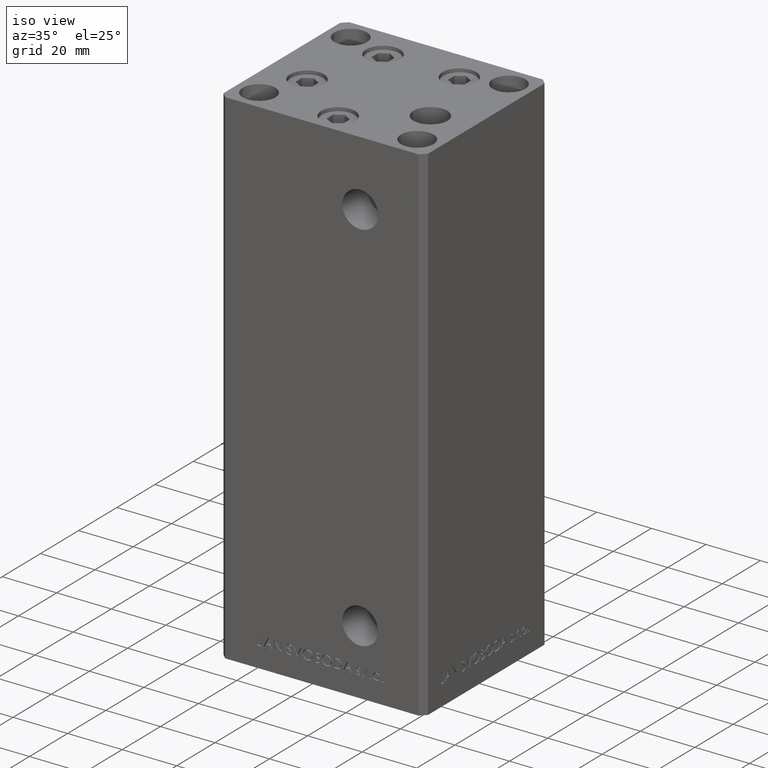
[diagram: clean part render]
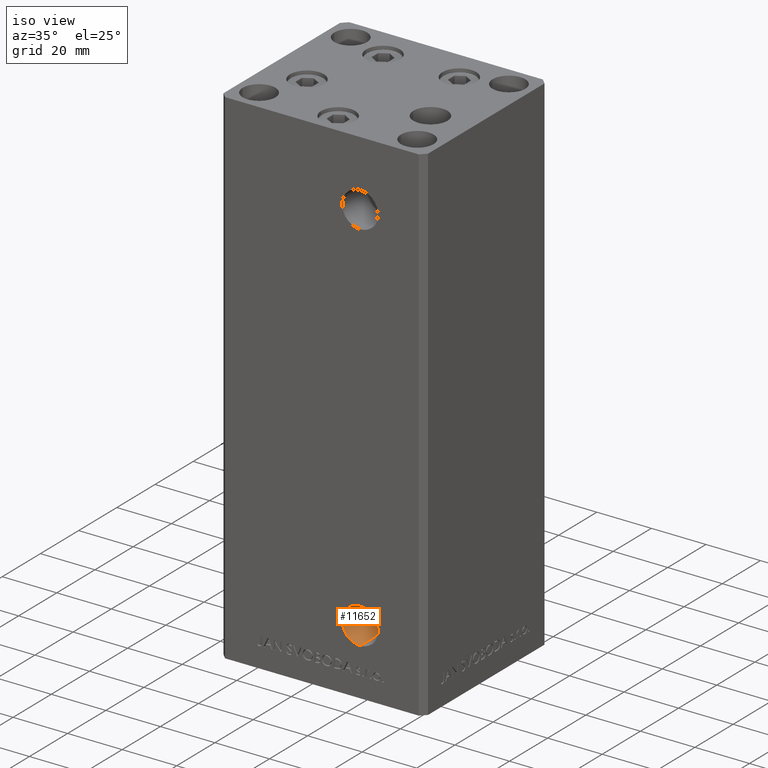
[diagram: same view with one face highlighted and labeled with its STEP entity id]
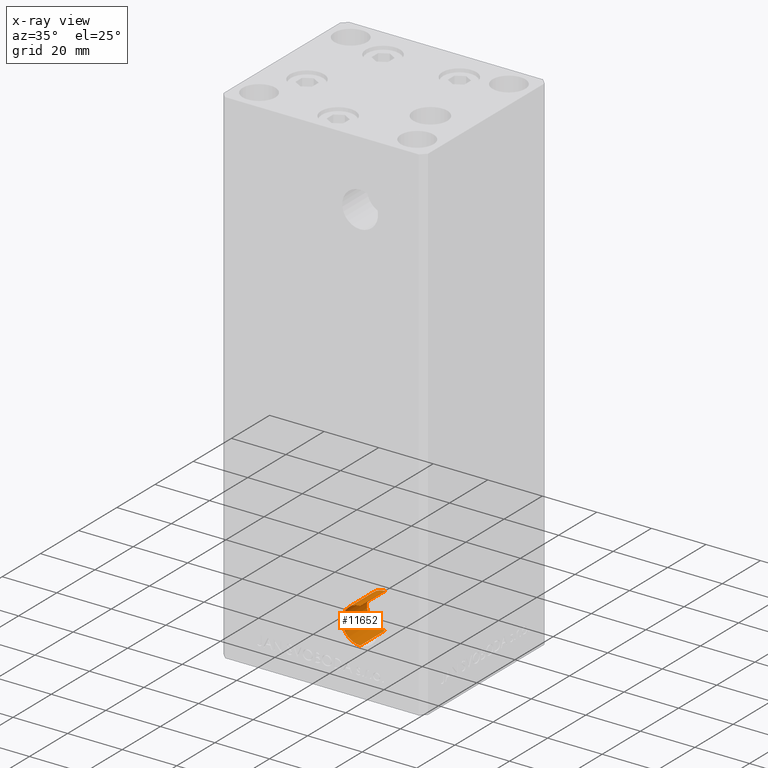
[diagram: x-ray of the same camera — body ghosted, the highlighted face saturated]
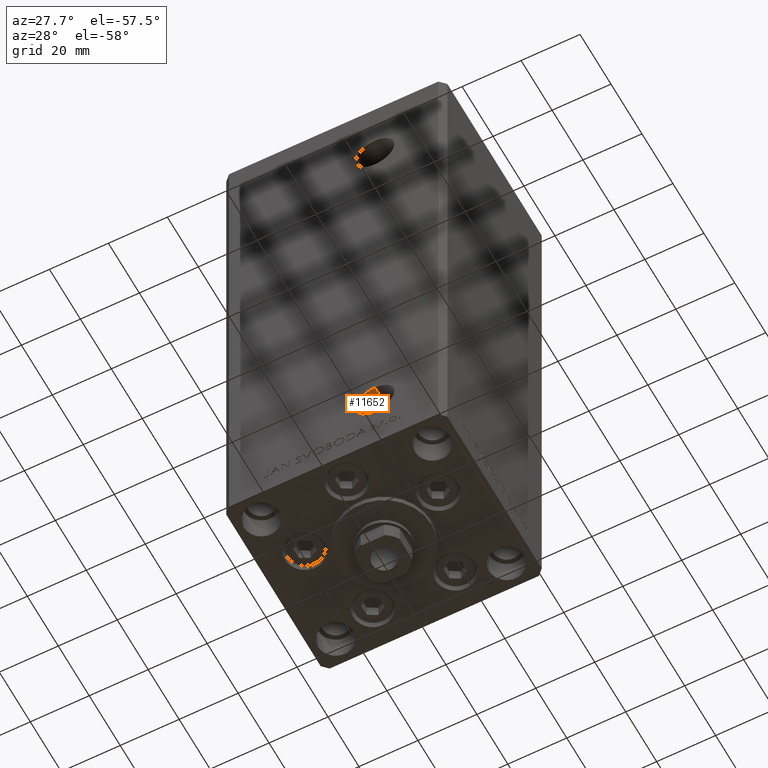
[diagram: same view with one face highlighted and labeled with its STEP entity id]
A machine part, iso view. The second image highlights one B-rep face of the part: STEP entity #11652.
The next image is the same camera in x-ray: the body ghosted, the highlighted face saturated — about 0% of this face is hidden behind the body in this view.
A second angle (auxiliary view) of the same face is appended — the face is thin or edge-on in the first view.
In plain terms, the highlighted cylindrical surface (edge-blend (fillet) strip) has radius 6.58 mm, axis along (-0, -1, -0).
Its self-contained STEP definition (entity closure, byte-faithful):
#223 = DIRECTION ( 'NONE',  ( 0.000000000000000000, 0.000000000000000000, -1.000000000000000000 ) ) ;
#1628 = VECTOR ( 'NONE', #37021, 1000.000000000000000 ) ;
#1646 = ORIENTED_EDGE ( 'NONE', *, *, #33899, .T. ) ;
#2797 = CARTESIAN_POINT ( 'NONE',  ( 13.99999999999999112, -19.50000000000000355, 15.58000000000000718 ) ) ;
#6211 = CARTESIAN_POINT ( 'NONE',  ( 13.99999999999999112, -19.50000000000000355, 2.420000000000009699 ) ) ;
#6806 = ORIENTED_EDGE ( 'NONE', *, *, #43106, .T. ) ;
#7434 = CARTESIAN_POINT ( 'NONE',  ( 13.99999999999999112, -32.50000000000000000, 9.000000000000007105 ) ) ;
#8892 = DIRECTION ( 'NONE',  ( -0.000000000000000000, -1.000000000000000000, -0.000000000000000000 ) ) ;
#9025 = EDGE_CURVE ( 'NONE', #14724, #16239, #18909, .T. ) ;
#9777 = DIRECTION ( 'NONE',  ( 0.000000000000000000, 0.000000000000000000, -1.000000000000000000 ) ) ;
#11318 = ORIENTED_EDGE ( 'NONE', *, *, #45032, .F. ) ;
#11652 = ADVANCED_FACE ( 'NONE', ( #33111 ), #17812, .F. ) ;
#14724 = VERTEX_POINT ( 'NONE', #2797 ) ;
#16239 = VERTEX_POINT ( 'NONE', #6211 ) ;
#16677 = CARTESIAN_POINT ( 'NONE',  ( 13.99999999999999112, -19.50000000000000355, 15.58000000000000718 ) ) ;
#17812 = CYLINDRICAL_SURFACE ( 'NONE', #23647, 6.579999999999998295 ) ;
#18909 = CIRCLE ( 'NONE', #45369, 6.579999999999998295 ) ;
#18925 = VECTOR ( 'NONE', #8892, 1000.000000000000000 ) ;
#18968 = VERTEX_POINT ( 'NONE', #42783 ) ;
#20807 = CIRCLE ( 'NONE', #25615, 6.579999999999998295 ) ;
#22742 = DIRECTION ( 'NONE',  ( 0.000000000000000000, -1.000000000000000000, 0.000000000000000000 ) ) ;
#23647 = AXIS2_PLACEMENT_3D ( 'NONE', #25327, #25583, #9777 ) ;
#25233 = ORIENTED_EDGE ( 'NONE', *, *, #9025, .F. ) ;
#25327 = CARTESIAN_POINT ( 'NONE',  ( 13.99999999999999112, -19.50000000000000355, 9.000000000000007105 ) ) ;
#25583 = DIRECTION ( 'NONE',  ( -0.000000000000000000, -1.000000000000000000, -0.000000000000000000 ) ) ;
#25615 = AXIS2_PLACEMENT_3D ( 'NONE', #7434, #22742, #38313 ) ;
#26462 = CARTESIAN_POINT ( 'NONE',  ( 13.99999999999999112, -32.50000000000000000, 15.58000000000000718 ) ) ;
#29190 = LINE ( 'NONE', #16677, #18925 ) ;
#29215 = LINE ( 'NONE', #29979, #1628 ) ;
#29979 = CARTESIAN_POINT ( 'NONE',  ( 13.99999999999999112, -19.50000000000000355, 2.420000000000009699 ) ) ;
#33111 = FACE_OUTER_BOUND ( 'NONE', #47859, .T. ) ;
#33899 = EDGE_CURVE ( 'NONE', #14724, #39096, #29190, .T. ) ;
#34616 = DIRECTION ( 'NONE',  ( 0.000000000000000000, -1.000000000000000000, 0.000000000000000000 ) ) ;
#34850 = CARTESIAN_POINT ( 'NONE',  ( 13.99999999999999112, -19.50000000000000355, 9.000000000000007105 ) ) ;
#37021 = DIRECTION ( 'NONE',  ( -0.000000000000000000, -1.000000000000000000, -0.000000000000000000 ) ) ;
#38313 = DIRECTION ( 'NONE',  ( 0.000000000000000000, 0.000000000000000000, -1.000000000000000000 ) ) ;
#39096 = VERTEX_POINT ( 'NONE', #26462 ) ;
#42783 = CARTESIAN_POINT ( 'NONE',  ( 13.99999999999999112, -32.50000000000000000, 2.420000000000009699 ) ) ;
#43106 = EDGE_CURVE ( 'NONE', #39096, #18968, #20807, .T. ) ;
#45032 = EDGE_CURVE ( 'NONE', #16239, #18968, #29215, .T. ) ;
#45369 = AXIS2_PLACEMENT_3D ( 'NONE', #34850, #34616, #223 ) ;
#47859 = EDGE_LOOP ( 'NONE', ( #25233, #1646, #6806, #11318 ) ) ;